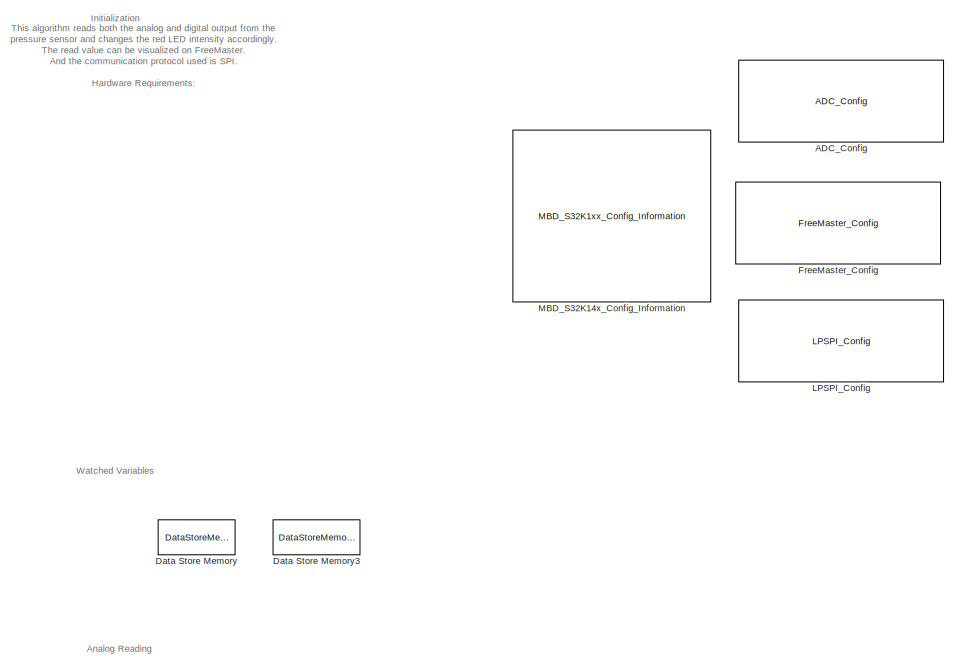
[diagram: root canvas - part 1/2, full width, top band]
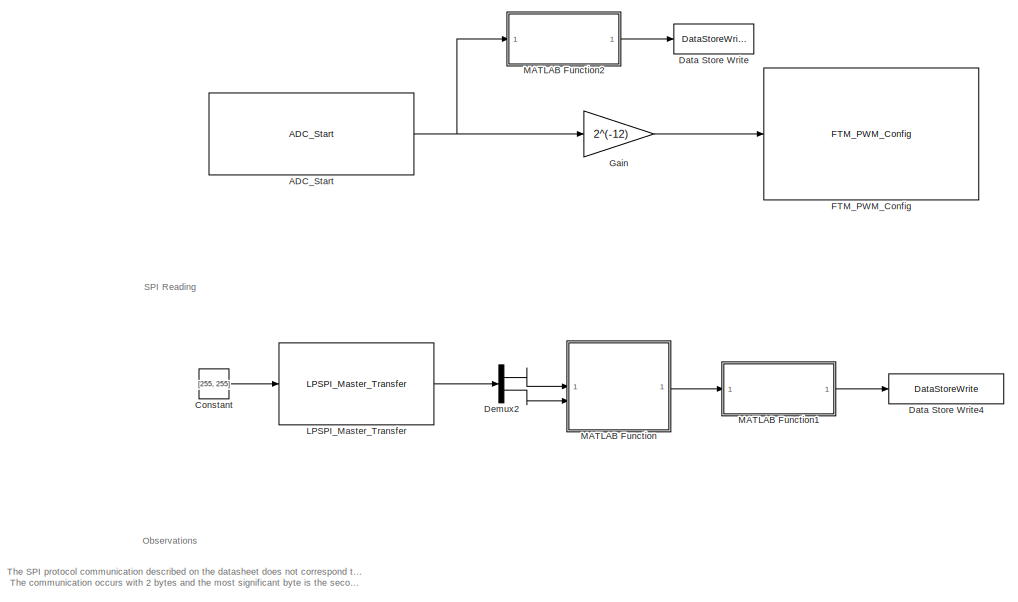
[diagram: root canvas - part 2/2, full width, bottom band]
MODEL slx_bdbb0d45d1bb
KIND model
CONFIG AbsTol = auto
CONFIG EnableMultiTasking = on
CONFIG FixedStep = auto
CONFIG InitFcn = mbd_s32k_consistency_checks(bdroot(gcs));
CONFIG MaxStep = auto
CONFIG MinStep = auto
CONFIG RelTol = 1e-3
CONFIG SampleTimeConstraint = Unconstrained
CONFIG SolverName = FixedStepDiscrete
CONFIG StartTime = 0.0
CONFIG StopTime = inf
WORKSPACE source: mxarray member
WORKSPACE mwTaskManagerKernelLatency = 1e-06
BLOCK [Reference] ADC_Config  REF=mbd_s32k1xx_ec_toolbox/Motor Control Blocks/ADC Blocks/ADC_Config
  SourceBlock = mbd_s32k1xx_ec_toolbox/Motor Control Blocks/ADC Blocks/ADC_Config
  SourceType = adc_s32k_config_block
BLOCK [Reference] ADC_Start  REF=mbd_s32k1xx_ec_toolbox/Motor Control Blocks/ADC Blocks/ADC_Start
  SourceBlock = mbd_s32k1xx_ec_toolbox/Motor Control Blocks/ADC Blocks/ADC_Start
  SourceType = adc_s32k_start_block
BLOCK [Constant] Constant
  OutDataTypeStr = uint8
  Value = [255, 255]
BLOCK [DataStoreMemory] Data Store Memory
  DataStoreName = pressure_analog
  ShowAdditionalParam = off
  StateMustResolveToSignalObject = on
  WriteAfterWriteMsg = warning
BLOCK [DataStoreMemory] Data Store Memory3
  DataStoreName = pressure_digital
  OutDataTypeStr = uint16
  ShowAdditionalParam = off
  StateMustResolveToSignalObject = on
  WriteAfterWriteMsg = warning
BLOCK [DataStoreWrite] Data Store Write
  DataStoreName = pressure_analog
  IndexOptions = Index vector (dialog)
  Indices = 1
  OutputSizes = 1
BLOCK [DataStoreWrite] Data Store Write4
  DataStoreName = pressure_digital
  IndexOptions = Index vector (dialog)
  Indices = 1
  OutputSizes = 1
BLOCK [Demux] Demux2
  Outputs = 2
BLOCK [Reference] FTM_PWM_Config  REF=mbd_s32k1xx_ec_toolbox/Motor Control Blocks/FTM Blocks/FTM_PWM_Config
  SourceBlock = mbd_s32k1xx_ec_toolbox/Motor Control Blocks/FTM Blocks/FTM_PWM_Config
  SourceType = FTM_s32k_pwm_config_block
BLOCK [Reference] FreeMaster_Config  REF=mbd_s32k1xx_ec_toolbox/Utility Blocks/FreeMaster_Config
  SourceBlock = mbd_s32k1xx_ec_toolbox/Utility Blocks/FreeMaster_Config
  SourceType = fm_s32k_config
BLOCK [Gain] Gain
  Gain = 2^(-12)
  ParamDataTypeStr = single
BLOCK [Reference] LPSPI_Config   REF=mbd_s32k1xx_ec_toolbox/Communication Blocks/SPI Blocks/LPSPI_Config

  SourceBlock = mbd_s32k1xx_ec_toolbox/Communication Blocks/SPI Blocks/LPSPI_Config
  SourceType = lpspi_s32k_config
BLOCK [Reference] LPSPI_Master_Transfer  REF=mbd_s32k1xx_ec_toolbox/Communication Blocks/SPI Blocks/LPSPI_Master_Transfer
  SourceBlock = mbd_s32k1xx_ec_toolbox/Communication Blocks/SPI Blocks/LPSPI_Master_Transfer
  SourceType = lpspi_s32k_master_transfer
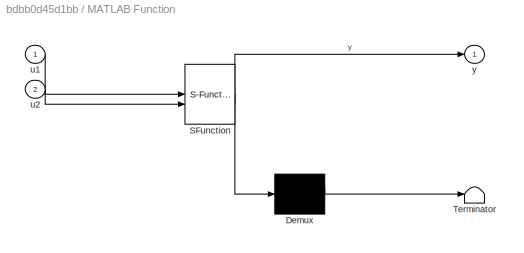
BLOCK [SubSystem] MATLAB Function
  ErrorFcn = Stateflow.Translate.translate
  PermitHierarchicalResolution = ExplicitOnly
  SFBlockType = MATLAB Function
  TreatAsAtomicUnit = on
BLOCK [Demux] MATLAB Function/ Demux 
  Outputs = 1
BLOCK [S-Function] MATLAB Function/ SFunction 
  EnableBusSupport = on
  FunctionName = sf_sfun
  PortCounts = [2 2]
  SFcnIsStateOwnerBlock = off
  SFunctionDeploymentMode = off
  Tag = Stateflow S-Function 2
BLOCK [Terminator] MATLAB Function/ Terminator 
BLOCK [Inport] MATLAB Function/u1
BLOCK [Inport] MATLAB Function/u2
  Port = 2
BLOCK [Outport] MATLAB Function/y
  VectorParamsAs1DForOutWhenUnconnected = off
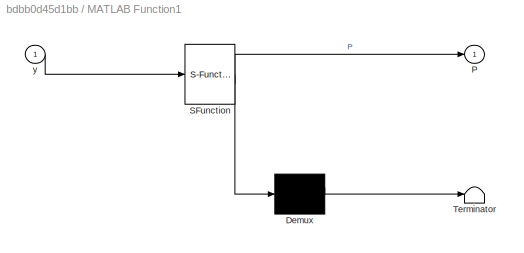
BLOCK [SubSystem] MATLAB Function1
  ErrorFcn = Stateflow.Translate.translate
  PermitHierarchicalResolution = ExplicitOnly
  SFBlockType = MATLAB Function
  TreatAsAtomicUnit = on
BLOCK [Demux] MATLAB Function1/ Demux 
  Outputs = 1
BLOCK [S-Function] MATLAB Function1/ SFunction 
  EnableBusSupport = on
  FunctionName = sf_sfun
  PortCounts = [1 2]
  SFcnIsStateOwnerBlock = off
  SFunctionDeploymentMode = off
  Tag = Stateflow S-Function 1
BLOCK [Terminator] MATLAB Function1/ Terminator 
BLOCK [Outport] MATLAB Function1/P
  VectorParamsAs1DForOutWhenUnconnected = off
BLOCK [Inport] MATLAB Function1/y
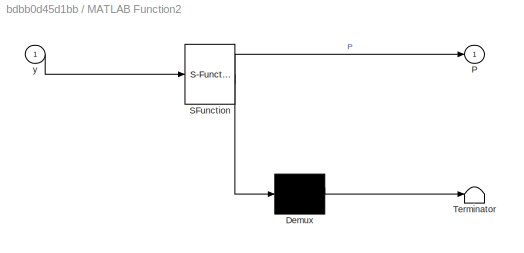
BLOCK [SubSystem] MATLAB Function2
  ErrorFcn = Stateflow.Translate.translate
  PermitHierarchicalResolution = ExplicitOnly
  SFBlockType = MATLAB Function
  TreatAsAtomicUnit = on
BLOCK [Demux] MATLAB Function2/ Demux 
  Outputs = 1
BLOCK [S-Function] MATLAB Function2/ SFunction 
  EnableBusSupport = on
  FunctionName = sf_sfun
  PortCounts = [1 2]
  SFcnIsStateOwnerBlock = off
  SFunctionDeploymentMode = off
  Tag = Stateflow S-Function 3
BLOCK [Terminator] MATLAB Function2/ Terminator 
BLOCK [Outport] MATLAB Function2/P
  VectorParamsAs1DForOutWhenUnconnected = off
BLOCK [Inport] MATLAB Function2/y
BLOCK [Reference] MBD_S32K14x_Config_Information  REF=mbd_s32k1xx_ec_toolbox/MBD_S32K1xx_Config_Information
  Priority = 0
  SourceBlock = mbd_s32k1xx_ec_toolbox/MBD_S32K1xx_Config_Information
  SourceType = MBDTBX_EC_S32K
ANNOTATION (root): Analog Reading
ANNOTATION (root): Initialization
ANNOTATION (root): Observations
ANNOTATION (root): SPI Reading
ANNOTATION (root): The SPI protocol communication described on the datasheet does not correspond to the actual sensor`s behavior. The communication occurs with 2 bytes and the most significant byte is the second one.
ANNOTATION (root): This algorithm reads both the analog and digital output from the pressure sensor and changes the red LED intensity accordingly. The read value can be visualized on FreeMaster. And the communication protocol used is SPI. Hardware Requirements: - S32K144 board - HTDM100USP Before running this, type on the Command Line: load 'Init_Pressure_Variables' Pin connections: Sensor | Board | Function 1 | PTC...<+202ch>
ANNOTATION (root): Watched Variables
NET ADC_Start:1 -> Gain:1, MATLAB Function2:1
LINE Constant:1 -> LPSPI_Master_Transfer:1
LINE Demux2:1 -> MATLAB Function:1
LINE Demux2:2 -> MATLAB Function:2
LINE Gain:1 -> FTM_PWM_Config:1
LINE LPSPI_Master_Transfer:1 -> Demux2:1
LINE MATLAB Function1:1 -> Data Store Write4:1
LINE MATLAB Function2:1 -> Data Store Write:1
LINE MATLAB Function:1 -> MATLAB Function1:1
note: NET lines group one-source signal fan-out (src -> all destinations, sorted); 1:1 wires keep LINE
CHART MATLAB Function1 states=1 transitions=1
  STATE_LABEL 'eML_blk_kernel()'
  STATE_LABEL 'SCRIPT:\nfunction P = press_calc_dig (y)\n% Calculate the corresponding pressure based on the digital reading\n\n\n%Pressure range\nPmax = 100;\nPmin = 0;\n\n%Digital range\nOut_max_d = 29491;\nOut_min_d = 3277;\n\nS = (Out_max_d - Out_min_d)/(Pmax-Pmin);\nP = (y - Out_min_d)/S + Pmin;'
CHART MATLAB Function states=1 transitions=1
  STATE_LABEL 'eML_blk_kernel()'
  STATE_LABEL "SCRIPT:\nfunction y  = data_mask(u1, u2)\n\n\nu = [u2, u1];\n\nu_bin_mat = int2bit(u, 8);\nu_bin_vec = (reshape(u_bin_mat, 1, []))';\n\ny= bit2int( u_bin_vec(2:end),15);\n\n"
CHART MATLAB Function2 states=1 transitions=1
  STATE_LABEL 'eML_blk_kernel()'
  STATE_LABEL 'SCRIPT:\nfunction P = press_calc_analog (y)\n% Calculate the corresponding pressure based on the analog reading\n\n\n%Pressure range\nPmax = 100;\nPmin = 0;\n\n%Analog range\nOut_max_a = 3686.4;\nOut_min_a = 409.6;\n\n\nS = (Out_max_a - Out_min_a)/(Pmax-Pmin);\nP = (y - Out_min_a)/S + Pmin;'
CHART  states=0 transitions=0
CHART  states=0 transitions=0
CHART  states=0 transitions=0
